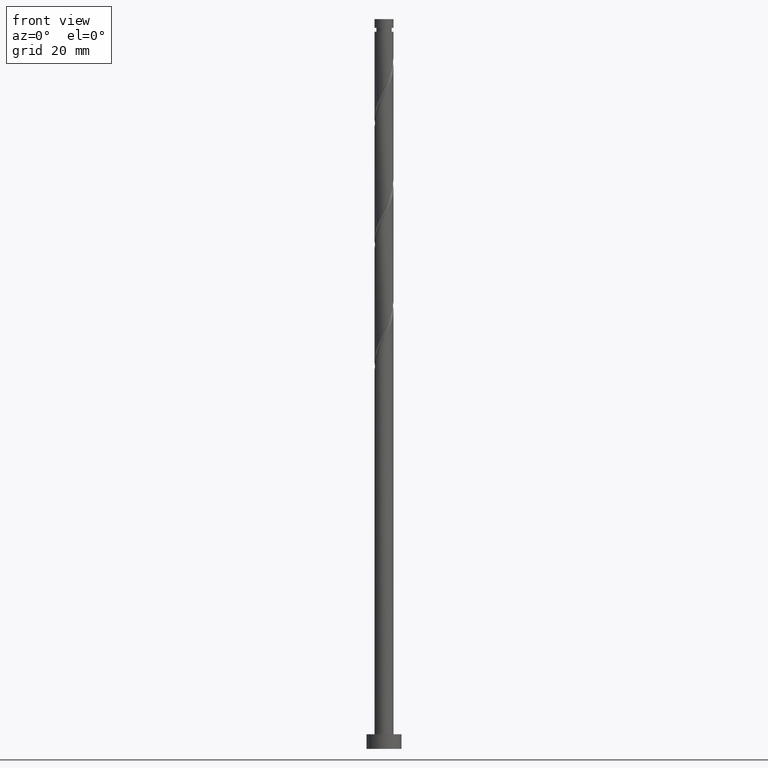
[diagram: clean part render]
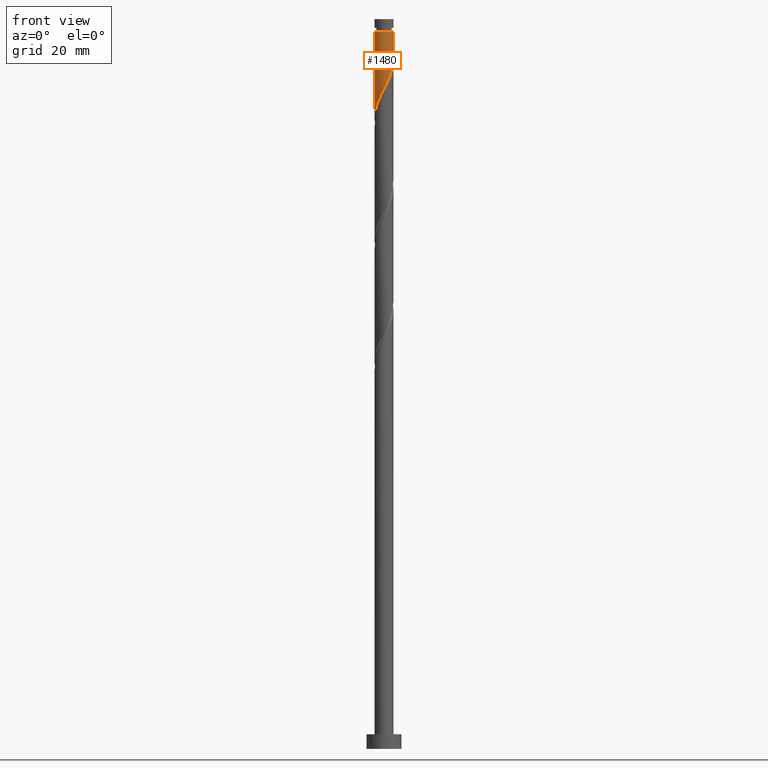
[diagram: same view with one face highlighted and labeled with its STEP entity id]
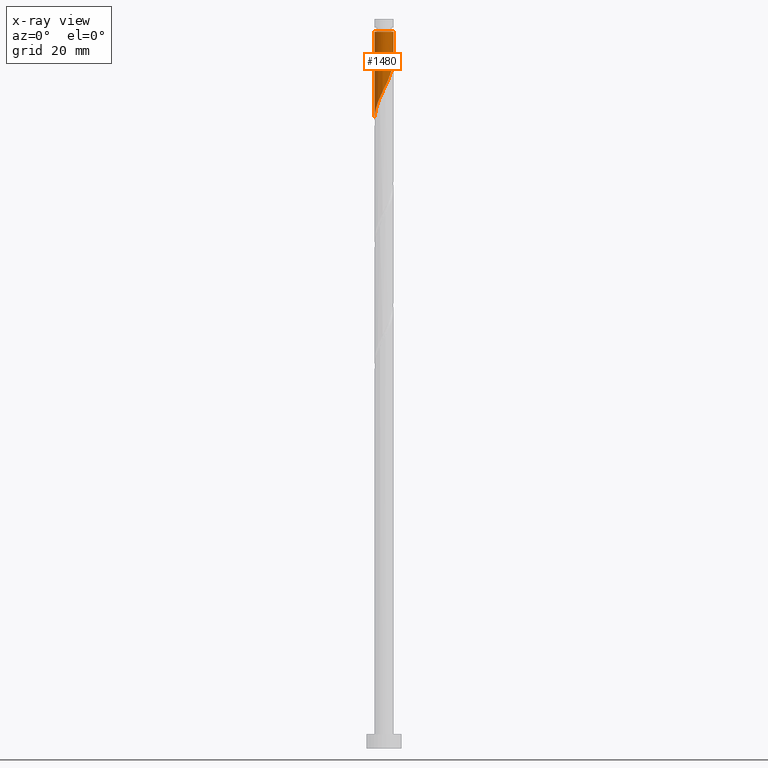
[diagram: x-ray of the same camera — body ghosted, the highlighted face saturated]
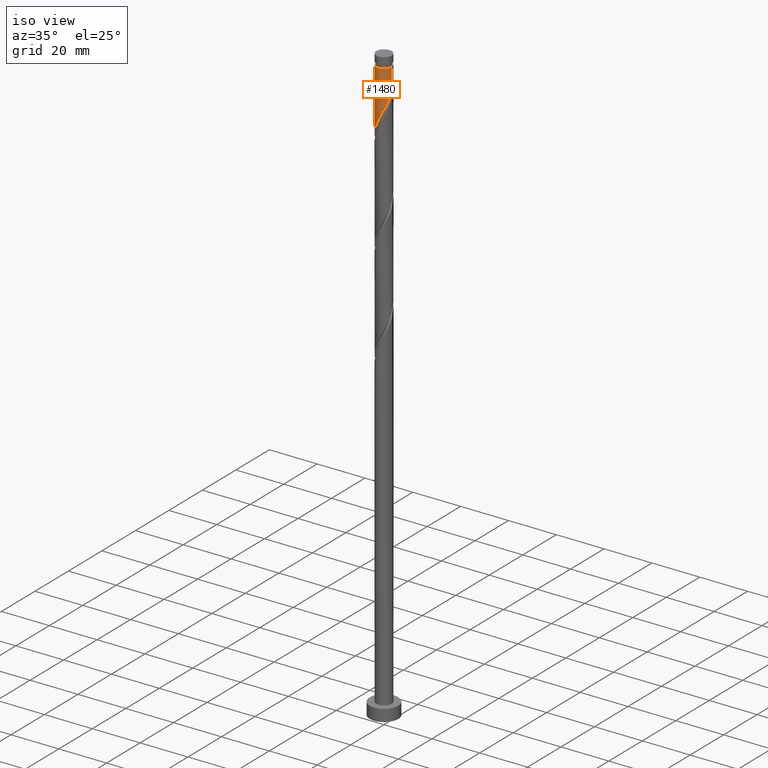
[diagram: same view with one face highlighted and labeled with its STEP entity id]
A machine part, front view. The second image highlights one B-rep face of the part: STEP entity #1480.
The next image is the same camera in x-ray: the body ghosted, the highlighted face saturated — about 0% of this face is hidden behind the body in this view.
A second angle (iso view) of the same face is appended — the face is thin or edge-on in the first view.
In plain terms, the highlighted cylindrical surface (edge-blend (fillet) strip) has radius 3.25 mm, axis along (-0, -0, -1).
Its self-contained STEP definition (entity closure, byte-faithful):
#28 = CARTESIAN_POINT ( 'NONE',  ( 2.538127330985529007, -2.067881944631016822, 232.0693257953977593 ) ) ;
#49 = CARTESIAN_POINT ( 'NONE',  ( 2.748688917919487995, -1.734130684956182611, 232.8706078466798601 ) ) ;
#67 = FACE_OUTER_BOUND ( 'NONE', #373, .T. ) ;
#136 = CARTESIAN_POINT ( 'NONE',  ( -3.250000000000001332, -0.2640834252453866382, 216.3087432804328500 ) ) ;
#199 =( BOUNDED_CURVE ( )  B_SPLINE_CURVE ( 2, ( #296, #1152, #317, #329, #1711, #1752, #49, #28, #1581, #916, #1451, #751, #1620, #207, #1320, #609, #872, #1743, #621, #1054, #469, #340, #1042, #907, #1191, #1135, #230, #136, #1097 ),
 .UNSPECIFIED., .F., .T. ) 
 B_SPLINE_CURVE_WITH_KNOTS ( ( 3, 2, 2, 2, 2, 2, 2, 2, 2, 2, 2, 2, 2, 2, 3 ),
 ( 0.3045271625973832164, 0.3076923076923077094, 0.3173076923076922906, 0.3269230769230769273, 0.3365384615384615641, 0.3461538461538461453, 0.3557692307692307820, 0.3653846153846153633, 0.3750000000000000000, 0.3846153846153846367, 0.3942307692307692180, 0.4038461538461538547, 0.4134615384615384359, 0.4230769230769230727, 0.4295271625973835494 ),
 .UNSPECIFIED. ) 
 CURVE ( )  GEOMETRIC_REPRESENTATION_ITEM ( )  RATIONAL_B_SPLINE_CURVE ( ( 0.9061636035682860690, 0.9069090390690746073, 0.9090909090909312651, 0.9024626128164348060, 0.9090909090909312651, 0.9024626128164348060, 0.9090909090909312651, 0.9024626128164348060, 0.9090909090909312651, 0.9024626128164348060, 0.9090909090909312651, 0.9024626128164348060, 0.9090909090909312651, 0.9024626128164348060, 0.9090909090909312651, 0.9024626128164348060, 0.9090909090909312651, 0.9024626128164348060, 0.9090909090909312651, 0.9024626128164348060, 0.9090909090909312651, 0.9024626128164348060, 0.9090909090909312651, 0.9024626128164348060, 0.9090909090909312651, 0.9024626128164348060, 0.9090909090909312651, 0.9046444828382911307, 0.9061636035682862911 ) ) 
 REPRESENTATION_ITEM ( '' )  );
#205 = VERTEX_POINT ( 'NONE', #1828 ) ;
#207 = CARTESIAN_POINT ( 'NONE',  ( 0.5285562154176349781, -3.230921604182013240, 227.2616334877054953 ) ) ;
#224 = CARTESIAN_POINT ( 'NONE',  ( 0.000000000000000000, 0.000000000000000000, 250.0000000000000000 ) ) ;
#230 = CARTESIAN_POINT ( 'NONE',  ( -3.207364547986603753, -0.5247024455047699654, 216.8449668210388097 ) ) ;
#246 = VERTEX_POINT ( 'NONE', #608 ) ;
#296 = CARTESIAN_POINT ( 'NONE',  ( 3.249999999999999112, -1.256298836796077262E-15, 236.6023758764179092 ) ) ;
#317 = CARTESIAN_POINT ( 'NONE',  ( 3.239733877669281892, -0.2581170313674834849, 236.0757360518080645 ) ) ;
#329 = CARTESIAN_POINT ( 'NONE',  ( 3.208392795817199605, -0.6514919439064300599, 235.2744540005259921 ) ) ;
#340 = CARTESIAN_POINT ( 'NONE',  ( -2.358742199564648256, -2.270365900294400774, 220.8513770774490581 ) ) ;
#346 = DIRECTION ( 'NONE',  ( -0.000000000000000000, -0.000000000000000000, -1.000000000000000000 ) ) ;
#361 = CARTESIAN_POINT ( 'NONE',  ( -3.250000000000000444, 0.000000000000000000, 250.0000000000000000 ) ) ;
#373 = EDGE_LOOP ( 'NONE', ( #1051, #1618, #844, #1550 ) ) ;
#469 = CARTESIAN_POINT ( 'NONE',  ( -2.052804757022350213, -2.519621525060145029, 221.6526591287311589 ) ) ;
#482 = CARTESIAN_POINT ( 'NONE',  ( 3.250000000000000444, 3.980102097228898231E-16, 250.0000000000000000 ) ) ;
#507 = CYLINDRICAL_SURFACE ( 'NONE', #1343, 3.250000000000000444 ) ;
#552 = CARTESIAN_POINT ( 'NONE',  ( 0.000000000000000000, 0.000000000000000000, 245.6911206671926777 ) ) ;
#608 = CARTESIAN_POINT ( 'NONE',  ( -3.249999999999999112, 4.412001867319556709E-15, 215.7690425430845380 ) ) ;
#609 = CARTESIAN_POINT ( 'NONE',  ( -0.2600128175564051514, -3.263528676131567163, 225.6590693851414073 ) ) ;
#621 = CARTESIAN_POINT ( 'NONE',  ( -1.390169082581128146, -2.937674236847160003, 223.2552232312952754 ) ) ;
#751 = CARTESIAN_POINT ( 'NONE',  ( 1.286407482375274691, -3.010545112519589228, 228.8641975902696402 ) ) ;
#790 = DIRECTION ( 'NONE',  ( -1.000000000000000000, 0.000000000000000000, 0.000000000000000000 ) ) ;
#795 = DIRECTION ( 'NONE',  ( -0.000000000000000000, -0.000000000000000000, -1.000000000000000000 ) ) ;
#844 = ORIENTED_EDGE ( 'NONE', *, *, #889, .T. ) ;
#872 = CARTESIAN_POINT ( 'NONE',  ( -0.6467418341193047482, -3.184999999999999165, 224.8577873338593349 ) ) ;
#889 = EDGE_CURVE ( 'NONE', #947, #246, #918, .T. ) ;
#907 = CARTESIAN_POINT ( 'NONE',  ( -2.833535561689597859, -1.639909237082070481, 219.2488129748850270 ) ) ;
#916 = CARTESIAN_POINT ( 'NONE',  ( 1.969497422358207128, -2.615206681803765587, 230.4667616928336997 ) ) ;
#918 = LINE ( 'NONE', #361, #1106 ) ;
#947 = VERTEX_POINT ( 'NONE', #1279 ) ;
#1010 = LINE ( 'NONE', #482, #1668 ) ;
#1042 = CARTESIAN_POINT ( 'NONE',  ( -2.596138880627123502, -1.955137568688235516, 220.0500950261670141 ) ) ;
#1051 = ORIENTED_EDGE ( 'NONE', *, *, #1634, .F. ) ;
#1054 = CARTESIAN_POINT ( 'NONE',  ( -1.746867314480051059, -2.768877149825889283, 222.4539411800131461 ) ) ;
#1097 = CARTESIAN_POINT ( 'NONE',  ( -3.249999999999999112, 4.412001867319556709E-15, 215.7690425430845380 ) ) ;
#1106 = VECTOR ( 'NONE', #795, 1000.000000000000000 ) ;
#1135 = CARTESIAN_POINT ( 'NONE',  ( -3.143654136451844661, -0.9141470098380726217, 217.6462488723209106 ) ) ;
#1152 = CARTESIAN_POINT ( 'NONE',  ( 3.250000000000000444, -0.1292626735944965577, 236.3382049607849353 ) ) ;
#1185 = EDGE_CURVE ( 'NONE', #1407, #947, #1252, .T. ) ;
#1191 = CARTESIAN_POINT ( 'NONE',  ( -2.988594849070721260, -1.277028123460071773, 218.4475309236029830 ) ) ;
#1252 = CIRCLE ( 'NONE', #1489, 3.249999999999982681 ) ;
#1279 = CARTESIAN_POINT ( 'NONE',  ( -3.249999999999982681, 0.000000000000000000, 245.6911206671926777 ) ) ;
#1302 = DIRECTION ( 'NONE',  ( -0.000000000000000000, -0.000000000000000000, -1.000000000000000000 ) ) ;
#1320 = CARTESIAN_POINT ( 'NONE',  ( 0.1342716989306146913, -3.247225140156789980, 226.4603514364234798 ) ) ;
#1343 = AXIS2_PLACEMENT_3D ( 'NONE', #224, #346, #790 ) ;
#1407 = VERTEX_POINT ( 'NONE', #1637 ) ;
#1423 = DIRECTION ( 'NONE',  ( -1.000000000000000000, 0.000000000000000000, 0.000000000000000000 ) ) ;
#1451 = CARTESIAN_POINT ( 'NONE',  ( 1.627952452366741243, -2.812875897161677852, 229.6654796415516557 ) ) ;
#1480 = ADVANCED_FACE ( 'NONE', ( #67 ), #507, .T. ) ;
#1489 = AXIS2_PLACEMENT_3D ( 'NONE', #552, #1562, #1423 ) ;
#1550 = ORIENTED_EDGE ( 'NONE', *, *, #1680, .F. ) ;
#1562 = DIRECTION ( 'NONE',  ( -0.000000000000000000, -0.000000000000000000, -1.000000000000000000 ) ) ;
#1581 = CARTESIAN_POINT ( 'NONE',  ( 2.253812376671869622, -2.341544313217390982, 231.2680437441157721 ) ) ;
#1618 = ORIENTED_EDGE ( 'NONE', *, *, #1185, .T. ) ;
#1620 = CARTESIAN_POINT ( 'NONE',  ( 0.9074818488964557783, -3.120733358350801456, 228.0629155389875393 ) ) ;
#1634 = EDGE_CURVE ( 'NONE', #1407, #205, #1010, .T. ) ;
#1637 = CARTESIAN_POINT ( 'NONE',  ( 3.249999999999982681, 3.980102097228887385E-16, 245.6911206671926777 ) ) ;
#1668 = VECTOR ( 'NONE', #1302, 1000.000000000000000 ) ;
#1680 = EDGE_CURVE ( 'NONE', #205, #246, #199, .T. ) ;
#1711 = CARTESIAN_POINT ( 'NONE',  ( 3.083821650335321518, -1.025935684593890507, 234.4731719492439765 ) ) ;
#1743 = CARTESIAN_POINT ( 'NONE',  ( -1.033470850682205233, -3.106471323868431167, 224.0565052825772909 ) ) ;
#1752 = CARTESIAN_POINT ( 'NONE',  ( 2.959250504853443875, -1.400379425281347734, 233.6718898979618473 ) ) ;
#1828 = CARTESIAN_POINT ( 'NONE',  ( 3.249999999999999556, -1.256298836796077262E-15, 236.6023758764179092 ) ) ;